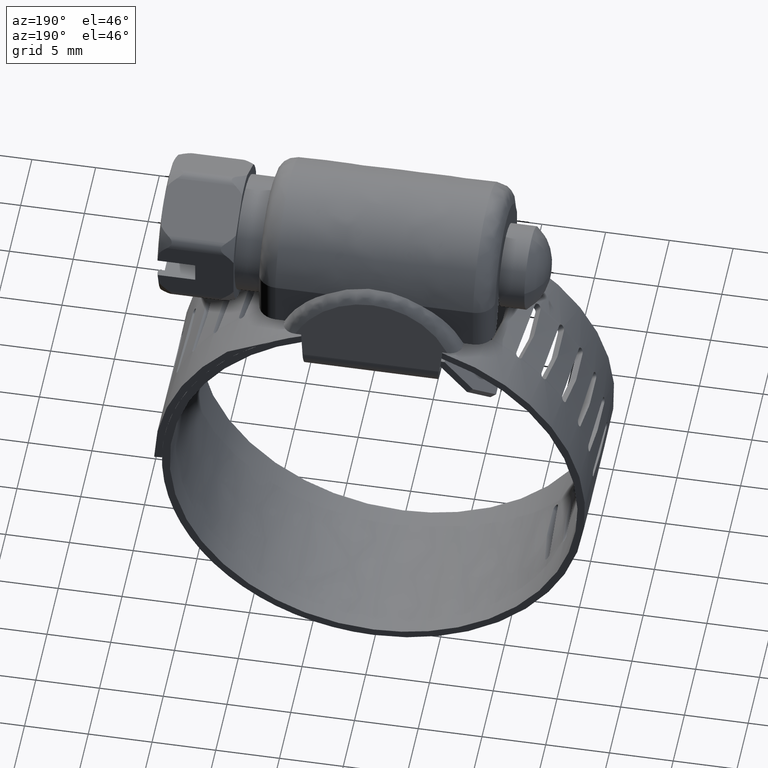
[diagram: clean part render]
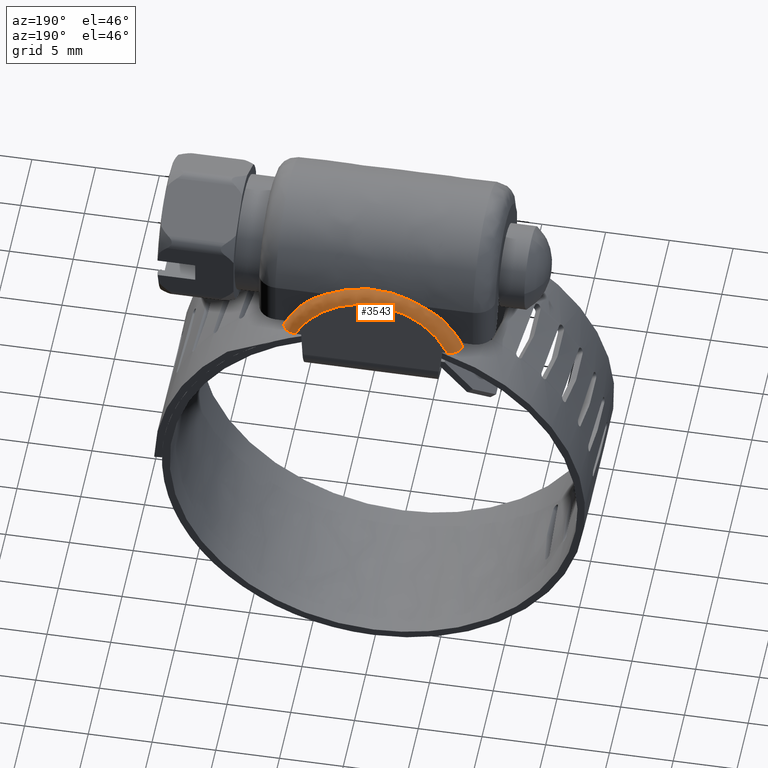
[diagram: same view with one face highlighted and labeled with its STEP entity id]
A machine part, auxiliary view. The second image highlights one B-rep face of the part: STEP entity #3543.
In plain terms, the highlighted face is a freeform B-spline surface patch.
Its self-contained STEP definition (entity closure, byte-faithful):
#3288=CARTESIAN_POINT('',(6.129863307084567,7.573081554253167,12.710637953682856));
#3289=CARTESIAN_POINT('',(5.871553260702317,7.480630370556144,13.302972934166320));
#3290=CARTESIAN_POINT('',(5.526856727794601,7.394082741281369,13.857483825723302));
#3291=CARTESIAN_POINT('',(4.693205414120006,7.239948394198492,14.845022998508249));
#3292=CARTESIAN_POINT('',(4.204362847976160,7.172384622892928,15.277904261433060));
#3293=CARTESIAN_POINT('',(3.123210042754059,7.061872331809808,15.985956805102061));
#3294=CARTESIAN_POINT('',(2.531025254390406,7.018936462996672,16.261047031083486));
#3295=CARTESIAN_POINT('',(1.292586431020551,6.961269521871021,16.630519276654002));
#3296=CARTESIAN_POINT('',(0.646475570024642,6.946545042129848,16.724859057621039));
#3297=CARTESIAN_POINT('',(-0.645903470090192,6.946536413816207,16.724914339249462));
#3298=CARTESIAN_POINT('',(-1.292022399706984,6.961252266229476,16.630629833595378));
#3299=CARTESIAN_POINT('',(-2.530492827532439,7.018902670864246,16.261263537366105));
#3300=CARTESIAN_POINT('',(-3.122701148170760,7.061830632406042,15.986223973293182));
#3301=CARTESIAN_POINT('',(-4.203914523914877,7.172328487271622,15.278263922508447));
#3302=CARTESIAN_POINT('',(-4.692794121479271,7.239885731290568,14.845424479926420));
#3303=CARTESIAN_POINT('',(-5.526529915342929,7.394008947180535,13.857956624724171));
#3304=CARTESIAN_POINT('',(-5.871273884450559,7.480551973989203,13.303475221179569));
#3305=CARTESIAN_POINT('',(-6.129634602608975,7.572999708895291,12.711162337109025));
#3306=CARTESIAN_POINT('',(6.132995040477077,7.572873420567243,12.711971466763606));
#3307=CARTESIAN_POINT('',(5.874531938882269,7.480377162653100,13.304595237876251));
#3308=CARTESIAN_POINT('',(5.529643786202182,7.393788572585522,13.859368565342061));
#3309=CARTESIAN_POINT('',(4.695547578861449,7.239582057228693,14.847370120450657));
#3310=CARTESIAN_POINT('',(4.206451900135238,7.171987283452705,15.280450016286144));
#3311=CARTESIAN_POINT('',(3.124750308085644,7.061424551828273,15.988825732637828));
#3312=CARTESIAN_POINT('',(2.532270528863999,7.018469400547539,16.264039501440603));
#3313=CARTESIAN_POINT('',(1.293219498815625,6.960776550712011,16.633677744184343));
#3314=CARTESIAN_POINT('',(0.646792467516197,6.946045530344657,16.728059430960776));
#3315=CARTESIAN_POINT('',(-0.646220087319618,6.946036898175099,16.728114737294131));
#3316=CARTESIAN_POINT('',(-1.292655190375641,6.960759287371639,16.633788350452168));
#3317=CARTESIAN_POINT('',(-2.531737837429143,7.018435593205489,16.264256105171235));
#3318=CARTESIAN_POINT('',(-3.124241158265916,7.061382833570755,15.989093021624990));
#3319=CARTESIAN_POINT('',(-4.206003345638482,7.171931122079018,15.280809842357080));
#3320=CARTESIAN_POINT('',(-4.695136071107705,7.239519365330701,14.847771787608295));
#3321=CARTESIAN_POINT('',(-5.529316794996341,7.393714743643840,13.859841587568305));
#3322=CARTESIAN_POINT('',(-5.874252404728594,7.480298728639007,13.305097764813604));
#3323=CARTESIAN_POINT('',(-6.132766201500118,7.572791535563861,12.712496104198596));
#3324=CARTESIAN_POINT('',(6.999505812395898,7.515285478603469,13.080937564493343));
#3325=CARTESIAN_POINT('',(6.693387369693191,7.410768882066451,13.750575677201926));
#3326=CARTESIAN_POINT('',(6.291280331970226,7.313399288755020,14.374422921217038));
#3327=CARTESIAN_POINT('',(5.328963198894915,7.140509795247578,15.482126367154828));
#3328=CARTESIAN_POINT('',(4.768879668665040,7.065013058925633,15.965834158095689));
#3329=CARTESIAN_POINT('',(3.536420598503607,6.941745356782003,16.755610654443782));
#3330=CARTESIAN_POINT('',(2.864168254835878,6.893985226140359,17.061609938821910));
#3331=CARTESIAN_POINT('',(1.461318670756225,6.829877389099209,17.472349021705284));
#3332=CARTESIAN_POINT('',(0.730858819088484,6.813535382844558,17.577052299352371));
#3333=CARTESIAN_POINT('',(-0.730212044416691,6.813525801499305,17.577113687060745));
#3334=CARTESIAN_POINT('',(-1.460680589511505,6.829858227264029,17.472471791636696));
#3335=CARTESIAN_POINT('',(-2.863564317443942,6.893947638686123,17.061850761739098));
#3336=CARTESIAN_POINT('',(-3.535842108593261,6.941698925822644,16.755908137722713));
#3337=CARTESIAN_POINT('',(-4.768366980029842,7.064950362847235,15.966235852038700));
#3338=CARTESIAN_POINT('',(-5.328490858769038,7.140439678943476,15.482575602505360));
#3339=CARTESIAN_POINT('',(-6.290900650023821,7.313316344177969,14.374954347340216));
#3340=CARTESIAN_POINT('',(-6.693059987253497,7.410680531138259,13.751141741859252));
#3341=CARTESIAN_POINT('',(-6.999234788606576,7.515192954575704,13.081530366185961));
#3342=CARTESIAN_POINT('',(7.052930438552400,6.581235409839866,12.958454490809137));
#3343=CARTESIAN_POINT('',(6.755716204132346,6.488716062028579,13.639975750062884));
#3344=CARTESIAN_POINT('',(6.359109850416086,6.402105948377131,14.277972293934942));
#3345=CARTESIAN_POINT('',(5.399919661497956,6.247861487606834,15.414194026728048));
#3346=CARTESIAN_POINT('',(4.837464631371110,6.180250226387003,15.912247540651066));
#3347=CARTESIAN_POINT('',(3.593507249732502,6.069660643292969,16.726902969289164));
#3348=CARTESIAN_POINT('',(2.912150629165558,6.026695128854734,17.043409079909875));
#3349=CARTESIAN_POINT('',(1.487224904072522,5.968988381480934,17.468508214896250));
#3350=CARTESIAN_POINT('',(0.743822968364432,5.954253827115670,17.577051190609644));
#3351=CARTESIAN_POINT('',(-0.743164721075212,5.954245192872778,17.577114795312770));
#3352=CARTESIAN_POINT('',(-1.486575940239289,5.968971113993400,17.468635416811100));
#3353=CARTESIAN_POINT('',(-2.911538028444475,6.026661313357535,17.043658182660607));
#3354=CARTESIAN_POINT('',(-3.592921724354330,6.069618914945898,16.727210361323490));
#3355=CARTESIAN_POINT('',(-4.836948796496645,6.180194051331703,15.912661351183104));
#3356=CARTESIAN_POINT('',(-5.399446433542498,6.247798780368644,15.414655953998432));
#3357=CARTESIAN_POINT('',(-6.358733822615962,6.402032101182208,14.278516276634054));
#3358=CARTESIAN_POINT('',(-6.755394754720978,6.488637608517072,13.640553660742931));
#3359=CARTESIAN_POINT('',(-7.052667290698381,6.581153504334946,12.959057825721452));
#3360=CARTESIAN_POINT('',(7.053123898518056,6.577853050294734,12.958010958061530));
#3361=CARTESIAN_POINT('',(6.755943370583159,6.485355507183066,13.639572652633992));
#3362=CARTESIAN_POINT('',(6.359358539030512,6.398764803056457,14.277618669533499));
#3363=CARTESIAN_POINT('',(5.400182542719691,6.244554382530231,15.413942349347424));
#3364=CARTESIAN_POINT('',(4.837719872350033,6.176957555186474,15.912048116460198));
#3365=CARTESIAN_POINT('',(3.593721252600623,6.066391426656245,16.726795351714337));
#3366=CARTESIAN_POINT('',(2.912331006337244,6.023434778841532,17.043340658546850));
#3367=CARTESIAN_POINT('',(1.487322656594884,5.965739971303335,17.468493722301012));
#3368=CARTESIAN_POINT('',(0.743871932679520,5.951008405302895,17.577051186422025));
#3369=CARTESIAN_POINT('',(-0.743213642086571,5.950999772831549,17.577114799498524));
#3370=CARTESIAN_POINT('',(-1.486673651806977,5.965722707345991,17.468620940923024));
#3371=CARTESIAN_POINT('',(-2.911718373445072,6.023400970357232,17.043589792273103));
#3372=CARTESIAN_POINT('',(-3.593135701431863,6.066349707022627,16.727102780600603));
#3373=CARTESIAN_POINT('',(-4.837204026717505,6.176901392133790,15.912461971341749));
#3374=CARTESIAN_POINT('',(-5.399709312577863,6.244491688866718,15.414404322583422));
#3375=CARTESIAN_POINT('',(-6.358982525882363,6.398690972362885,14.278162696486264));
#3376=CARTESIAN_POINT('',(-6.755621944027562,6.485277071520742,13.640150604302907));
#3377=CARTESIAN_POINT('',(-7.052860780294035,6.577771163840352,12.958614328572610));
#3385=(BOUNDED_SURFACE()B_SPLINE_SURFACE(3,2,((#3288,#3306,#3324,#3342,#3360),(#3289,#3307,#3325,#3343,#3361),(#3290,#3308,#3326,#3344,#3362),(#3291,#3309,#3327,#3345,#3363),(#3292,#3310,#3328,#3346,#3364),(#3293,#3311,#3329,#3347,#3365),(#3294,#3312,#3330,#3348,#3366),(#3295,#3313,#3331,#3349,#3367),(#3296,#3314,#3332,#3350,#3368),(#3297,#3315,#3333,#3351,#3369),(#3298,#3316,#3334,#3352,#3370),(#3299,#3317,#3335,#3353,#3371),(#3300,#3318,#3336,#3354,#3372),(#3301,#3319,#3337,#3355,#3373),(#3302,#3320,#3338,#3356,#3374),(#3303,#3321,#3339,#3357,#3375),(#3304,#3322,#3340,#3358,#3376),(#3305,#3323,#3341,#3359,#3377)),.UNSPECIFIED.,.F.,.F.,.U.)B_SPLINE_SURFACE_WITH_KNOTS((4,2,2,2,2,2,2,2,4),(3,1,1,3),(0.0,2.247671253573495,4.495342507146990,6.743013760720482,8.990685014293977,11.238356267867470,13.486027521440960,15.733698775014460,17.981370028587950),(0.0,0.007923442649564,1.592952330446208,1.600891210030785),.UNSPECIFIED.)GEOMETRIC_REPRESENTATION_ITEM()RATIONAL_B_SPLINE_SURFACE(((1.002713628073370,1.001356814036685,0.728578909619308,1.001359457464679,1.002718914929358),(1.002666762479201,1.001333381239601,0.733266475610901,1.001335979014388,1.002671958028776),(1.002623367424158,1.001311683712079,0.737606913150100,1.001314239214417,1.002628478428835),(1.002546607809416,1.001273303904708,0.745284523259931,1.001275784633161,1.002551569266322),(1.002513258669008,1.001256629334504,0.748620153570373,1.001259077576541,1.002518155153082),(1.002458948808460,1.001229474404230,0.754052306087124,1.001231869741373,1.002463739482746),(1.002437989774559,1.001218994887279,0.756148659633378,1.001221369807587,1.002442739615174),(1.002409883106987,1.001204941553494,0.758959930062853,1.001207289094238,1.002414578188476),(1.002402736190530,1.001201368095265,0.759674775209313,1.001203708673980,1.002407417347960),(1.002402731996881,1.001201365998440,0.759675194664370,1.001203706573070,1.002407413146140),(1.002409874719786,1.001204937359893,0.758960768963087,1.001207284892467,1.002414569784935),(1.002437973281297,1.001218986640649,0.756150309313756,1.001221361544890,1.002442723089780),(1.002458928402926,1.001229464201463,0.754054347078824,1.001231859518728,1.002463719037456),(1.002513230994887,1.001256615497444,0.748622921576838,1.001259063712522,1.002518127425045),(1.002546576779335,1.001273288389667,0.745287626934493,1.001275769087893,1.002551538175787),(1.002623330498236,1.001311665249118,0.737610606535385,1.001314220715486,1.002628441430972),(1.002666723013371,1.001333361506686,0.733270423041556,1.001335959243028,1.002671918486056),(1.002713586592959,1.001356793296480,0.728583058551316,1.001359436684066,1.002718873368132)))REPRESENTATION_ITEM('')SURFACE());
#3386=CARTESIAN_POINT('',(5.964274546191691,7.515887096035680,13.077083000000201));
#3387=VERTEX_POINT('',#3386);
#3388=CARTESIAN_POINT('',(6.999273225263380,6.604987965506259,13.077102000000201));
#3389=VERTEX_POINT('',#3388);
#3390=CARTESIAN_POINT('',(5.964274546191691,7.515887096035680,13.077083000000201));
#3391=CARTESIAN_POINT('',(6.028415981228038,7.515886992472053,13.077083663532440));
#3392=CARTESIAN_POINT('',(6.091751809899517,7.510938700309628,13.077084363780781));
#3393=CARTESIAN_POINT('',(6.216779169463165,7.490942524075838,13.077085839217579));
#3394=CARTESIAN_POINT('',(6.278472241768448,7.475904107658995,13.077086614335780));
#3395=CARTESIAN_POINT('',(6.400032593069749,7.434612902607645,13.077088247784070));
#3396=CARTESIAN_POINT('',(6.458098300753148,7.408956052139783,13.077089082051620));
#3397=CARTESIAN_POINT('',(6.568442150897046,7.347603554334182,13.077090782111989));
#3398=CARTESIAN_POINT('',(6.620774951898504,7.311902250863070,13.077091648521730));
#3399=CARTESIAN_POINT('',(6.719114002167152,7.229302081959949,13.077093417840571));
#3400=CARTESIAN_POINT('',(6.763530266715735,7.183682016038415,13.077094292658931));
#3401=CARTESIAN_POINT('',(6.822470992409777,7.109387235550514,13.077095578794340));
#3402=CARTESIAN_POINT('',(6.840864616995977,7.083609129253023,13.077096003765480));
#3403=CARTESIAN_POINT('',(6.875059671759336,7.029957335610267,13.077096845970850));
#3404=CARTESIAN_POINT('',(6.890948153422007,7.001898774270095,13.077097265788771));
#3405=CARTESIAN_POINT('',(6.933761008287979,6.915885769760693,13.077098491770970));
#3406=CARTESIAN_POINT('',(6.955839664667813,6.856421122202138,13.077099261556601));
#3407=CARTESIAN_POINT('',(6.987354443840644,6.733339795511856,13.077100708144680));
#3408=CARTESIAN_POINT('',(6.996734635444506,6.669294685132051,13.077101388269099));
#3409=CARTESIAN_POINT('',(6.999273225263380,6.604987965506259,13.077102000000201));
#3410=B_SPLINE_CURVE_WITH_KNOTS('',3,(#3390,#3391,#3392,#3393,#3394,#3395,#3396,#3397,#3398,#3399,#3400,#3401,#3402,#3403,#3404,#3405,#3406,#3407,#3408,#3409),.UNSPECIFIED.,.F.,.U.,(4,2,2,2,2,2,2,2,2,4),(0.0,0.124999999999999,0.249999999999998,0.374999999999996,0.499999999999995,0.624999999999994,0.687499999999994,0.749999999999995,0.874999999999997,1.0),.UNSPECIFIED.);
#3411=EDGE_CURVE('',#3387,#3389,#3410,.T.);
#3412=ORIENTED_EDGE('',*,*,#3411,.F.);
#3413=CARTESIAN_POINT('',(-5.964274546191691,7.515887096035680,13.077083000000201));
#3414=VERTEX_POINT('',#3413);
#3415=CARTESIAN_POINT('',(-5.964274546191691,7.515887096035680,13.077083000000201));
#3416=CARTESIAN_POINT('',(-4.101574888512248,6.945540499392355,16.731295165618835));
#3417=CARTESIAN_POINT('',(2.153124E-015,6.945540499392355,16.731295165618839));
#3418=CARTESIAN_POINT('',(4.101574888512252,6.945540499392355,16.731295165618835));
#3419=CARTESIAN_POINT('',(5.964274546191691,7.515887096035680,13.077083000000201));
#3427=(BOUNDED_CURVE()B_SPLINE_CURVE(2,(#3415,#3416,#3417,#3418,#3419),.UNSPECIFIED.,.F.,.U.)B_SPLINE_CURVE_WITH_KNOTS((3,2,3),(0.0,0.500000000000000,1.0),.UNSPECIFIED.)CURVE()GEOMETRIC_REPRESENTATION_ITEM()RATIONAL_B_SPLINE_CURVE((1.0,0.852684743861974,1.0,0.852684743861974,1.0))REPRESENTATION_ITEM(''));
#3428=EDGE_CURVE('',#3414,#3387,#3427,.T.);
#3429=ORIENTED_EDGE('',*,*,#3428,.F.);
#3430=CARTESIAN_POINT('',(-6.999273225263435,6.604987965506259,13.077102000000201));
#3431=VERTEX_POINT('',#3430);
#3432=CARTESIAN_POINT('',(-6.999273225263435,6.604987965506259,13.077102000000201));
#3433=CARTESIAN_POINT('',(-6.996741054113700,6.669132089523439,13.077101389815830));
#3434=CARTESIAN_POINT('',(-6.987605549745058,6.731884506723707,13.077100723991760));
#3435=CARTESIAN_POINT('',(-6.964207178149199,6.823969807244503,13.077099643564599));
#3436=CARTESIAN_POINT('',(-6.954780688989381,6.854321997042892,13.077099269712830));
#3437=CARTESIAN_POINT('',(-6.932569552515218,6.914318617173206,13.077098493713461));
#3438=CARTESIAN_POINT('',(-6.919824017204534,6.943798476128289,13.077098093468770));
#3439=CARTESIAN_POINT('',(-6.877466001423931,7.029155322136776,13.077096878165690));
#3440=CARTESIAN_POINT('',(-6.843544531229702,7.082609769108148,13.077096040587200));
#3441=CARTESIAN_POINT('',(-6.784240904734516,7.157678656341945,13.077094743649930));
#3442=CARTESIAN_POINT('',(-6.762987558882048,7.181891833937260,13.077094303343131));
#3443=CARTESIAN_POINT('',(-6.718605151543518,7.227567826170315,13.077093428365840));
#3444=CARTESIAN_POINT('',(-6.672150263252402,7.270772718006695,13.077092554446841));
#3445=CARTESIAN_POINT('',(-6.621709491469238,7.309225084486440,13.077091682563189));
#3446=CARTESIAN_POINT('',(-6.569302101014134,7.345332574322434,13.077090811683780));
#3447=CARTESIAN_POINT('',(-6.541974424742086,7.362286053533577,13.077090374633880));
#3448=CARTESIAN_POINT('',(-6.458318710928968,7.408899776240477,13.077089084844079));
#3449=CARTESIAN_POINT('',(-6.400304083004902,7.434457454743618,13.077088252007830));
#3450=CARTESIAN_POINT('',(-6.280137901025996,7.475400540378482,13.077086636151360));
#3451=CARTESIAN_POINT('',(-6.217566699842851,7.490792772250145,13.077085848727821));
#3452=CARTESIAN_POINT('',(-6.091811876235596,7.510952732402450,13.077084364274411));
#3453=CARTESIAN_POINT('',(-6.028332039510236,7.515886992607586,13.077083662664069));
#3454=CARTESIAN_POINT('',(-5.964274546191691,7.515887096035680,13.077083000000201));
#3455=B_SPLINE_CURVE_WITH_KNOTS('',3,(#3432,#3433,#3434,#3435,#3436,#3437,#3438,#3439,#3440,#3441,#3442,#3443,#3444,#3445,#3446,#3447,#3448,#3449,#3450,#3451,#3452,#3453,#3454),.UNSPECIFIED.,.F.,.U.,(4,2,2,2,2,2,1,2,2,2,2,4),(0.0,0.124999999999998,0.187499999999998,0.249999999999998,0.374999999999999,0.437499999999999,0.499999999999999,0.562499999999999,0.624999999999999,0.750000000000000,0.875000000000000,1.0),.UNSPECIFIED.);
#3456=EDGE_CURVE('',#3431,#3414,#3455,.T.);
#3457=ORIENTED_EDGE('',*,*,#3456,.F.);
#3458=CARTESIAN_POINT('',(-6.999982372892950,6.568573092690100,13.077121000000201));
#3459=VERTEX_POINT('',#3458);
#3460=CARTESIAN_POINT('',(-6.999982372892950,6.568573092690100,13.077121000000201));
#3461=CARTESIAN_POINT('',(-6.999273225263435,6.604987965506259,13.077102000000201));
#3462=QUASI_UNIFORM_CURVE('',1,(#3460,#3461),.UNSPECIFIED.,.F.,.U.);
#3463=EDGE_CURVE('',#3459,#3431,#3462,.T.);
#3464=ORIENTED_EDGE('',*,*,#3463,.F.);
#3465=CARTESIAN_POINT('',(-5.339251292383731,6.250000000000000,15.423114079441900));
#3466=VERTEX_POINT('',#3465);
#3467=CARTESIAN_POINT('',(-5.339251292383731,6.250000000000000,15.423114079441900));
#3468=CARTESIAN_POINT('',(-5.795419952172598,6.309700064742942,14.983478900128610));
#3469=CARTESIAN_POINT('',(-6.406497717039590,6.412266079780343,14.228176060733979));
#3470=CARTESIAN_POINT('',(-6.862730807603324,6.527702139996335,13.378097367338890));
#3471=CARTESIAN_POINT('',(-6.999982372892950,6.568573092690100,13.077121000000201));
#3472=B_SPLINE_CURVE_WITH_KNOTS('',3,(#3467,#3468,#3469,#3470,#3471),.UNSPECIFIED.,.F.,.U.,(4,1,4),(1.534575E-009,1.908964948777329,2.908899590151574),.UNSPECIFIED.);
#3473=EDGE_CURVE('',#3466,#3459,#3472,.T.);
#3474=ORIENTED_EDGE('',*,*,#3473,.F.);
#3475=CARTESIAN_POINT('',(-3.767731017053410,6.249999633170980,16.577121365332999));
#3476=VERTEX_POINT('',#3475);
#3477=CARTESIAN_POINT('',(-3.767731017053410,6.249999633170980,16.577121365332999));
#3478=CARTESIAN_POINT('',(-4.339600632362733,6.249999754729132,16.264307977887221));
#3479=CARTESIAN_POINT('',(-4.869551024874578,6.249999878441824,15.875061626578260));
#3480=CARTESIAN_POINT('',(-5.339251292383731,6.250000000000000,15.423114079441900));
#3481=B_SPLINE_CURVE_WITH_KNOTS('',3,(#3477,#3478,#3479,#3480),.UNSPECIFIED.,.F.,.U.,(4,4),(8.225398E-010,1.955452110250090),.UNSPECIFIED.);
#3482=EDGE_CURVE('',#3476,#3466,#3481,.T.);
#3483=ORIENTED_EDGE('',*,*,#3482,.F.);
#3484=CARTESIAN_POINT('',(3.767731017053410,6.249999633170980,16.577121365332999));
#3485=VERTEX_POINT('',#3484);
#3486=CARTESIAN_POINT('',(3.767731017053410,6.249999633170980,16.577121365332999));
#3487=CARTESIAN_POINT('',(3.479497733507518,6.229237709105721,16.739094258291651));
#3488=CARTESIAN_POINT('',(3.183884050679524,6.204583222070062,16.882071151559519));
#3489=CARTESIAN_POINT('',(2.577243934754033,6.155257050299552,17.129902017543969));
#3490=CARTESIAN_POINT('',(2.266206147951572,6.130582696073145,17.234727400421061));
#3491=CARTESIAN_POINT('',(1.866991587071622,6.103790234875439,17.340766625409820));
#3492=CARTESIAN_POINT('',(1.786771470837745,6.098641773924828,17.360678763914390));
#3493=CARTESIAN_POINT('',(1.626284023453253,6.088887352445290,17.397754646818960));
#3494=CARTESIAN_POINT('',(1.545912167912042,6.084274283725710,17.414946625872581));
#3495=CARTESIAN_POINT('',(1.304413467685331,6.071324521135703,17.462525250646319));
#3496=CARTESIAN_POINT('',(1.142903704963588,6.063881763437935,17.488918202284239));
#3497=CARTESIAN_POINT('',(0.656845720759579,6.045732683460419,17.552320710697689));
#3498=CARTESIAN_POINT('',(0.330773580215899,6.039272260056391,17.573625094178219));
#3499=CARTESIAN_POINT('',(-0.161444854682112,6.039221514861135,17.573795563976041));
#3500=CARTESIAN_POINT('',(-0.326037165918512,6.040794574774885,17.568537633646770));
#3501=CARTESIAN_POINT('',(-0.573723678317318,6.045531948734165,17.552468569044731));
#3502=CARTESIAN_POINT('',(-0.656346915220894,6.047506583847865,17.545745815254921));
#3503=CARTESIAN_POINT('',(-0.820608736505639,6.052185828560140,17.529677062264259));
#3504=CARTESIAN_POINT('',(-0.902400225254582,6.054893035526168,17.520322214310770));
#3505=CARTESIAN_POINT('',(-1.309688241338812,6.070144131077192,17.467030690373669));
#3506=CARTESIAN_POINT('',(-1.630188360697988,6.087907219618561,17.403609516303838));
#3507=CARTESIAN_POINT('',(-2.261015828429809,6.130224851233542,17.236162525183840));
#3508=CARTESIAN_POINT('',(-2.571339628588592,6.154781890041164,17.132122576332680));
#3509=CARTESIAN_POINT('',(-3.029391561703454,6.192018955972971,16.945279975485011));
#3510=CARTESIAN_POINT('',(-3.180366883374803,6.204442304778198,16.878030458831791));
#3511=CARTESIAN_POINT('',(-3.477353567144340,6.228231820699066,16.734492306269210));
#3512=CARTESIAN_POINT('',(-3.623625442391634,6.239619468304403,16.658101592606808));
#3513=CARTESIAN_POINT('',(-3.767731017053410,6.249999633170980,16.577121365332999));
#3514=B_SPLINE_CURVE_WITH_KNOTS('',3,(#3486,#3487,#3488,#3489,#3490,#3491,#3492,#3493,#3494,#3495,#3496,#3497,#3498,#3499,#3500,#3501,#3502,#3503,#3504,#3505,#3506,#3507,#3508,#3509,#3510,#3511,#3512,#3513),.UNSPECIFIED.,.F.,.U.,(4,2,2,2,2,2,2,2,2,2,2,2,2,4),(0.000000039879375,0.125000000000000,0.250000000000001,0.281250000000000,0.312500000000000,0.375000000000000,0.500000000000000,0.562500000000000,0.593749999999999,0.624999999999999,0.749999999999999,0.875000000000000,0.937500000000000,0.999999982445228),.UNSPECIFIED.);
#3515=EDGE_CURVE('',#3485,#3476,#3514,.T.);
#3516=ORIENTED_EDGE('',*,*,#3515,.F.);
#3517=CARTESIAN_POINT('',(5.339251292383731,6.250000000000000,15.423114079441900));
#3518=VERTEX_POINT('',#3517);
#3519=CARTESIAN_POINT('',(5.339251292383731,6.250000000000000,15.423114079441900));
#3520=CARTESIAN_POINT('',(4.869464920543387,6.249999878438584,15.874973539291361));
#3521=CARTESIAN_POINT('',(4.339456663628998,6.249999754732480,16.264081867014990));
#3522=CARTESIAN_POINT('',(3.767731017053410,6.249999633170980,16.577121365332999));
#3523=B_SPLINE_CURVE_WITH_KNOTS('',3,(#3519,#3520,#3521,#3522),.UNSPECIFIED.,.F.,.U.,(4,4),(8.153382E-010,1.955426325367341),.UNSPECIFIED.);
#3524=EDGE_CURVE('',#3518,#3485,#3523,.T.);
#3525=ORIENTED_EDGE('',*,*,#3524,.F.);
#3526=CARTESIAN_POINT('',(6.999982372892950,6.568573092690100,13.077121000000201));
#3527=VERTEX_POINT('',#3526);
#3528=CARTESIAN_POINT('',(6.999982372892950,6.568573092690100,13.077121000000201));
#3529=CARTESIAN_POINT('',(6.844038123131515,6.522127078795607,13.419152482458470));
#3530=CARTESIAN_POINT('',(6.380009289524274,6.407164918320647,14.265741347182111));
#3531=CARTESIAN_POINT('',(5.762821613333586,6.305436806870054,15.014873809790320));
#3532=CARTESIAN_POINT('',(5.339251292383731,6.250000000000000,15.423114079441900));
#3533=B_SPLINE_CURVE_WITH_KNOTS('',3,(#3528,#3529,#3530,#3531,#3532),.UNSPECIFIED.,.F.,.U.,(4,1,4),(1.536419E-009,1.136293476346775,2.908908034772342),.UNSPECIFIED.);
#3534=EDGE_CURVE('',#3527,#3518,#3533,.T.);
#3535=ORIENTED_EDGE('',*,*,#3534,.F.);
#3536=CARTESIAN_POINT('',(6.999273225263380,6.604987965506259,13.077102000000201));
#3537=CARTESIAN_POINT('',(6.999982372892950,6.568573092690100,13.077121000000201));
#3538=QUASI_UNIFORM_CURVE('',1,(#3536,#3537),.UNSPECIFIED.,.F.,.U.);
#3539=EDGE_CURVE('',#3389,#3527,#3538,.T.);
#3540=ORIENTED_EDGE('',*,*,#3539,.F.);
#3541=EDGE_LOOP('',(#3412,#3429,#3457,#3464,#3474,#3483,#3516,#3525,#3535,#3540));
#3542=FACE_OUTER_BOUND('',#3541,.T.);
#3543=ADVANCED_FACE('',(#3542),#3385,.T.);